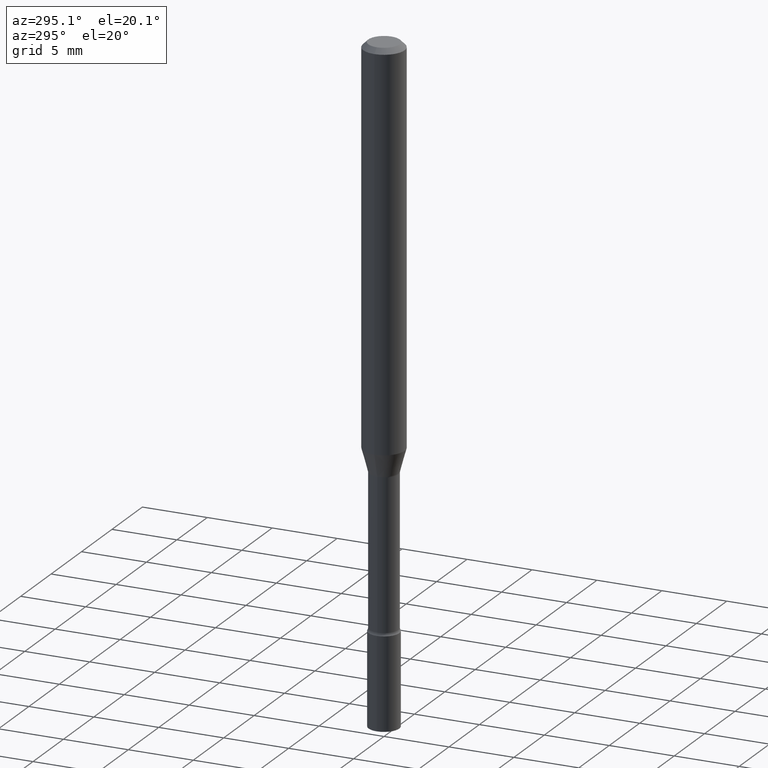
[diagram: clean part render]
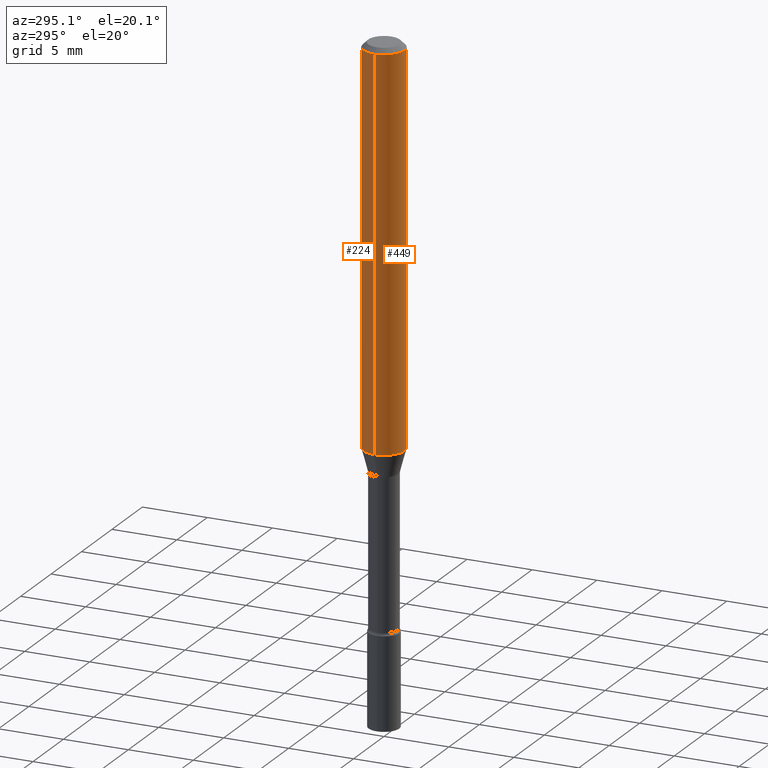
[diagram: same view with one multi-face feature highlighted, each face labeled with its STEP entity id]
A machine part, auxiliary view. The highlighted faces form ONE feature: a constant-radius fillet chain: 2 tangent blend faces with common blend radius 1.5875 mm. The faces share edges in the B-rep.
Their STEP definitions:
[1] entity #449 (Cylinder):
#24 = EDGE_CURVE ( 'NONE', #417, #465, #470, .T. ) ;
#36 = CARTESIAN_POINT ( 'NONE',  ( 0.06250000000000000000, -4.576764476837847734E-15, -1.185837444817705144 ) ) ;
#51 = ORIENTED_EDGE ( 'NONE', *, *, #208, .T. ) ;
#55 = CARTESIAN_POINT ( 'NONE',  ( 0.000000000000000000, 0.000000000000000000, 0.000000000000000000 ) ) ;
#58 = FACE_OUTER_BOUND ( 'NONE', #205, .T. ) ;
#86 = VECTOR ( 'NONE', #349, 39.37007874015748143 ) ;
#94 = DIRECTION ( 'NONE',  ( 1.000000000000000000, -6.982962677686266711E-15, 0.000000000000000000 ) ) ;
#95 = VECTOR ( 'NONE', #150, 39.37007874015748143 ) ;
#107 = CARTESIAN_POINT ( 'NONE',  ( -0.06250000000000000000, 4.440892098500626162E-16, -3.074334431409316114E-30 ) ) ;
#121 = DIRECTION ( 'NONE',  ( 1.000000000000000000, -6.982962677686262766E-15, 0.000000000000000000 ) ) ;
#125 = CIRCLE ( 'NONE', #309, 0.06250000000000000000 ) ;
#133 = DIRECTION ( 'NONE',  ( -2.445468806185136597E-29, 3.491481338843145583E-15, 1.000000000000000000 ) ) ;
#135 = CARTESIAN_POINT ( 'NONE',  ( -0.06250000000000000000, -1.652261554932489153E-15, -0.01500000000000003067 ) ) ;
#150 = DIRECTION ( 'NONE',  ( -2.445468806185136877E-29, 3.491481338843145188E-15, 1.000000000000000000 ) ) ;
#155 = CARTESIAN_POINT ( 'NONE',  ( 0.06250000000000000000, -4.364351673553916694E-16, 3.047610484872459871E-30 ) ) ;
#162 = CARTESIAN_POINT ( 'NONE',  ( 3.668203209277712094E-31, -5.237222008264728876E-17, -0.01500000000000003067 ) ) ;
#180 = CARTESIAN_POINT ( 'NONE',  ( 0.06250000000000000000, -4.888073874380389458E-16, -0.01500000000000003067 ) ) ;
#205 = EDGE_LOOP ( 'NONE', ( #442, #411, #51, #332 ) ) ;
#208 = EDGE_CURVE ( 'NONE', #213, #515, #476, .T. ) ;
#213 = VERTEX_POINT ( 'NONE', #36 ) ;
#214 = DIRECTION ( 'NONE',  ( 1.000000000000000000, -6.982962677686266711E-15, 4.876176775795935793E-29 ) ) ;
#220 = CIRCLE ( 'NONE', #358, 0.06250000000000000000 ) ;
#251 = CARTESIAN_POINT ( 'NONE',  ( -0.06250000000000000000, -3.696240099632393448E-15, -1.185837444817705144 ) ) ;
#254 = CYLINDRICAL_SURFACE ( 'NONE', #443, 0.06250000000000000000 ) ;
#261 = EDGE_CURVE ( 'NONE', #417, #213, #125, .T. ) ;
#309 = AXIS2_PLACEMENT_3D ( 'NONE', #316, #516, #121 ) ;
#316 = CARTESIAN_POINT ( 'NONE',  ( 2.899928480507986581E-29, -4.140329309482456065E-15, -1.185837444817705144 ) ) ;
#332 = ORIENTED_EDGE ( 'NONE', *, *, #374, .F. ) ;
#349 = DIRECTION ( 'NONE',  ( -2.445468806185136877E-29, 3.491481338843145188E-15, 1.000000000000000000 ) ) ;
#358 = AXIS2_PLACEMENT_3D ( 'NONE', #162, #133, #94 ) ;
#374 = EDGE_CURVE ( 'NONE', #465, #515, #220, .T. ) ;
#411 = ORIENTED_EDGE ( 'NONE', *, *, #261, .T. ) ;
#417 = VERTEX_POINT ( 'NONE', #251 ) ;
#442 = ORIENTED_EDGE ( 'NONE', *, *, #24, .F. ) ;
#443 = AXIS2_PLACEMENT_3D ( 'NONE', #55, #446, #214 ) ;
#446 = DIRECTION ( 'NONE',  ( -2.445468806185136597E-29, 3.491481338843145583E-15, 1.000000000000000000 ) ) ;
#449 = ADVANCED_FACE ( 'NONE', ( #58 ), #254, .T. ) ;
#465 = VERTEX_POINT ( 'NONE', #135 ) ;
#470 = LINE ( 'NONE', #107, #95 ) ;
#476 = LINE ( 'NONE', #155, #86 ) ;
#515 = VERTEX_POINT ( 'NONE', #180 ) ;
#516 = DIRECTION ( 'NONE',  ( -2.445468806185136597E-29, 3.491481338843145583E-15, 1.000000000000000000 ) ) ;
[2] entity #224 (Cylinder):
#1 = FACE_OUTER_BOUND ( 'NONE', #452, .T. ) ;
#24 = EDGE_CURVE ( 'NONE', #417, #465, #470, .T. ) ;
#36 = CARTESIAN_POINT ( 'NONE',  ( 0.06250000000000000000, -4.576764476837847734E-15, -1.185837444817705144 ) ) ;
#41 = CARTESIAN_POINT ( 'NONE',  ( 3.668203209277712094E-31, -5.237222008264728876E-17, -0.01500000000000003067 ) ) ;
#50 = CIRCLE ( 'NONE', #440, 0.06250000000000000000 ) ;
#54 = CIRCLE ( 'NONE', #412, 0.06250000000000000000 ) ;
#86 = VECTOR ( 'NONE', #349, 39.37007874015748143 ) ;
#95 = VECTOR ( 'NONE', #150, 39.37007874015748143 ) ;
#107 = CARTESIAN_POINT ( 'NONE',  ( -0.06250000000000000000, 4.440892098500626162E-16, -3.074334431409316114E-30 ) ) ;
#128 = DIRECTION ( 'NONE',  ( 1.000000000000000000, -6.982962677686262766E-15, 0.000000000000000000 ) ) ;
#135 = CARTESIAN_POINT ( 'NONE',  ( -0.06250000000000000000, -1.652261554932489153E-15, -0.01500000000000003067 ) ) ;
#150 = DIRECTION ( 'NONE',  ( -2.445468806185136877E-29, 3.491481338843145188E-15, 1.000000000000000000 ) ) ;
#155 = CARTESIAN_POINT ( 'NONE',  ( 0.06250000000000000000, -4.364351673553916694E-16, 3.047610484872459871E-30 ) ) ;
#165 = ORIENTED_EDGE ( 'NONE', *, *, #208, .F. ) ;
#172 = ORIENTED_EDGE ( 'NONE', *, *, #450, .T. ) ;
#180 = CARTESIAN_POINT ( 'NONE',  ( 0.06250000000000000000, -4.888073874380389458E-16, -0.01500000000000003067 ) ) ;
#197 = DIRECTION ( 'NONE',  ( -2.445468806185136597E-29, 3.491481338843145583E-15, 1.000000000000000000 ) ) ;
#208 = EDGE_CURVE ( 'NONE', #213, #515, #476, .T. ) ;
#213 = VERTEX_POINT ( 'NONE', #36 ) ;
#224 = ADVANCED_FACE ( 'NONE', ( #1 ), #353, .T. ) ;
#231 = EDGE_CURVE ( 'NONE', #515, #465, #50, .T. ) ;
#249 = ORIENTED_EDGE ( 'NONE', *, *, #24, .T. ) ;
#251 = CARTESIAN_POINT ( 'NONE',  ( -0.06250000000000000000, -3.696240099632393448E-15, -1.185837444817705144 ) ) ;
#311 = CARTESIAN_POINT ( 'NONE',  ( 0.000000000000000000, 0.000000000000000000, 0.000000000000000000 ) ) ;
#344 = AXIS2_PLACEMENT_3D ( 'NONE', #311, #397, #390 ) ;
#349 = DIRECTION ( 'NONE',  ( -2.445468806185136877E-29, 3.491481338843145188E-15, 1.000000000000000000 ) ) ;
#353 = CYLINDRICAL_SURFACE ( 'NONE', #344, 0.06250000000000000000 ) ;
#368 = CARTESIAN_POINT ( 'NONE',  ( 2.899928480507986581E-29, -4.140329309482456065E-15, -1.185837444817705144 ) ) ;
#390 = DIRECTION ( 'NONE',  ( 1.000000000000000000, -6.982962677686266711E-15, 4.876176775795935793E-29 ) ) ;
#397 = DIRECTION ( 'NONE',  ( -2.445468806185136597E-29, 3.491481338843145583E-15, 1.000000000000000000 ) ) ;
#401 = DIRECTION ( 'NONE',  ( 1.000000000000000000, -6.982962677686266711E-15, 0.000000000000000000 ) ) ;
#412 = AXIS2_PLACEMENT_3D ( 'NONE', #368, #490, #128 ) ;
#417 = VERTEX_POINT ( 'NONE', #251 ) ;
#440 = AXIS2_PLACEMENT_3D ( 'NONE', #41, #197, #401 ) ;
#450 = EDGE_CURVE ( 'NONE', #213, #417, #54, .T. ) ;
#452 = EDGE_LOOP ( 'NONE', ( #172, #249, #455, #165 ) ) ;
#455 = ORIENTED_EDGE ( 'NONE', *, *, #231, .F. ) ;
#465 = VERTEX_POINT ( 'NONE', #135 ) ;
#470 = LINE ( 'NONE', #107, #95 ) ;
#476 = LINE ( 'NONE', #155, #86 ) ;
#490 = DIRECTION ( 'NONE',  ( -2.445468806185136597E-29, 3.491481338843145583E-15, 1.000000000000000000 ) ) ;
#515 = VERTEX_POINT ( 'NONE', #180 ) ;